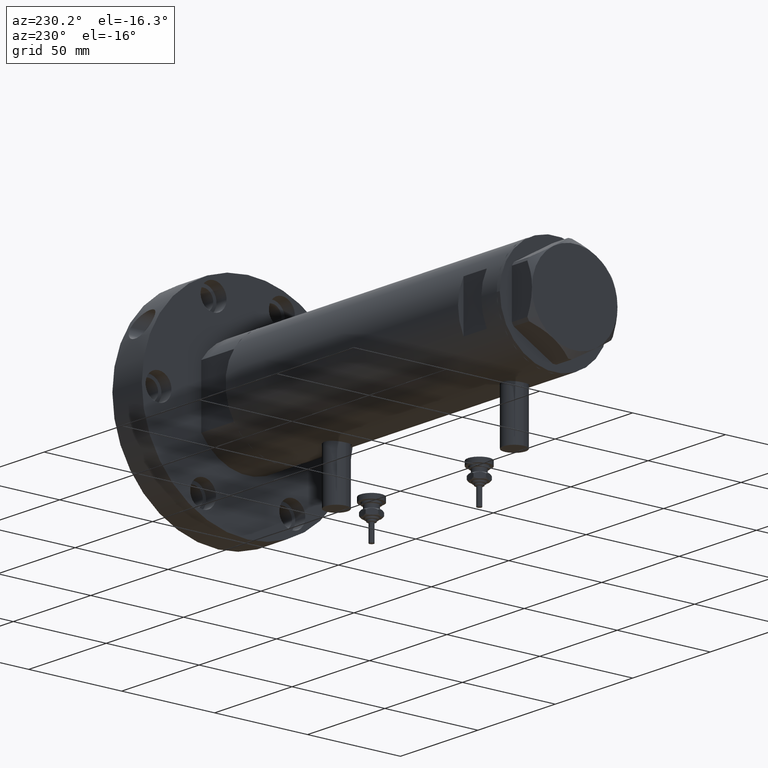
[diagram: clean part render]
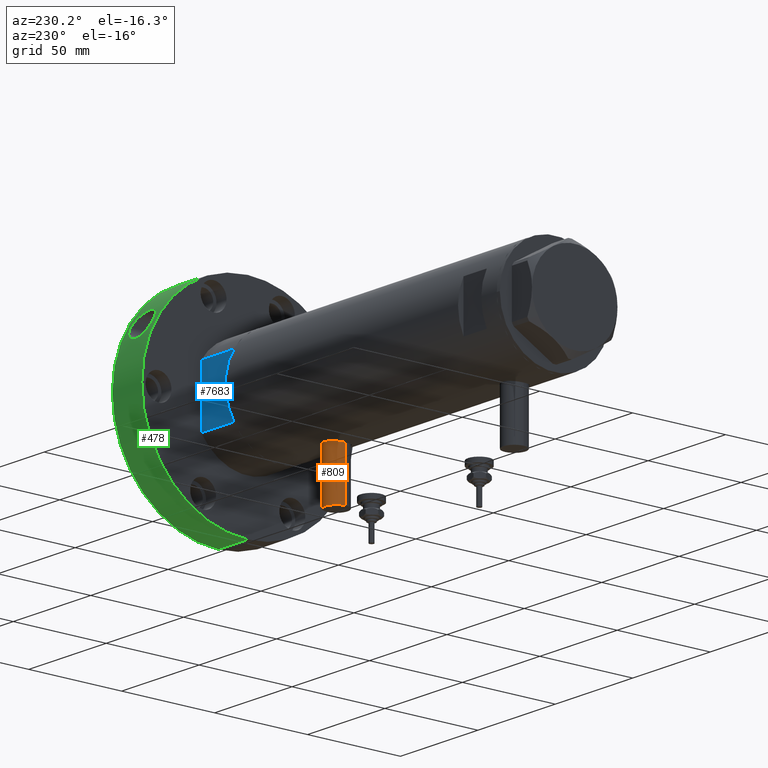
[diagram: same view with three faces highlighted in distinct colors, each labeled with its STEP entity id]
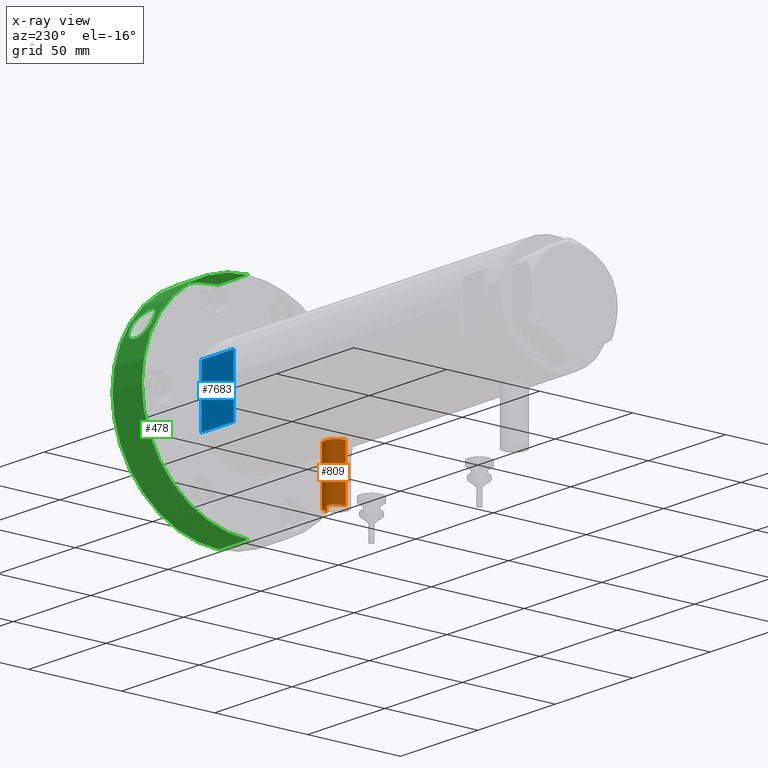
[diagram: x-ray of the same camera — body ghosted, the three highlighted faces saturated]
A machine part, auxiliary view with three faces highlighted in distinct colors.
The next image is the same camera in x-ray (body ghosted, the three faces saturated) — at least one of them is partly hidden behind the body in this view.
Their STEP definitions:

[orange] entity #809 — the highlighted cylindrical surface (edge-blend (fillet) strip) has radius 6 mm, axis along (0, 0, 1).
#271 = AXIS2_PLACEMENT_3D ( 'NONE', #1444, #7312, #1576 ) ;
#310 = EDGE_CURVE ( 'NONE', #2067, #7226, #2050, .T. ) ;
#483 = ORIENTED_EDGE ( 'NONE', *, *, #2708, .F. ) ;
#569 = CARTESIAN_POINT ( 'NONE',  ( -56.60000000000000142, 7.347880794884119736E-16, -45.29999999999999005 ) ) ;
#729 = CARTESIAN_POINT ( 'NONE',  ( -56.60000000000000142, 0.000000000000000000, -57.30000000000000426 ) ) ;
#753 = EDGE_CURVE ( 'NONE', #4342, #4074, #5552, .T. ) ;
#781 = ORIENTED_EDGE ( 'NONE', *, *, #310, .F. ) ;
#809 = ADVANCED_FACE ( 'NONE', ( #6083 ), #1042, .T. ) ;
#1042 = CYLINDRICAL_SURFACE ( 'NONE', #8267, 6.000000000000005329 ) ;
#1444 = CARTESIAN_POINT ( 'NONE',  ( -56.60000000000000142, 0.000000000000000000, -51.29999999999999716 ) ) ;
#1576 = DIRECTION ( 'NONE',  ( 0.000000000000000000, 0.000000000000000000, 1.000000000000000000 ) ) ;
#1696 = CARTESIAN_POINT ( 'NONE',  ( -28.30000000000000071, 0.000000000000000000, -51.29999999999999716 ) ) ;
#1856 = AXIS2_PLACEMENT_3D ( 'NONE', #1696, #6051, #3513 ) ;
#1969 = CARTESIAN_POINT ( 'NONE',  ( -28.30000000000000071, 0.000000000000000000, -57.30000000000000426 ) ) ;
#2050 = CIRCLE ( 'NONE', #271, 6.000000000000005329 ) ;
#2067 = VERTEX_POINT ( 'NONE', #569 ) ;
#2708 = EDGE_CURVE ( 'NONE', #7226, #4074, #3975, .T. ) ;
#3513 = DIRECTION ( 'NONE',  ( 0.000000000000000000, 0.000000000000000000, 1.000000000000000000 ) ) ;
#3552 = CARTESIAN_POINT ( 'NONE',  ( -28.30000000000000071, 7.347880794884119736E-16, -45.29999999999999005 ) ) ;
#3774 = CARTESIAN_POINT ( 'NONE',  ( -56.60000000000000142, 7.347880794884122694E-16, -45.29999999999999005 ) ) ;
#3955 = CARTESIAN_POINT ( 'NONE',  ( -56.60000000000000142, 0.000000000000000000, -57.30000000000000426 ) ) ;
#3975 = LINE ( 'NONE', #729, #6529 ) ;
#4074 = VERTEX_POINT ( 'NONE', #1969 ) ;
#4211 = EDGE_CURVE ( 'NONE', #2067, #4342, #6971, .T. ) ;
#4342 = VERTEX_POINT ( 'NONE', #3552 ) ;
#5409 = EDGE_LOOP ( 'NONE', ( #781, #8001, #6287, #483 ) ) ;
#5512 = CARTESIAN_POINT ( 'NONE',  ( -56.60000000000000142, 0.000000000000000000, -51.29999999999999716 ) ) ;
#5545 = DIRECTION ( 'NONE',  ( 0.000000000000000000, 0.000000000000000000, -1.000000000000000000 ) ) ;
#5552 = CIRCLE ( 'NONE', #1856, 6.000000000000005329 ) ;
#6051 = DIRECTION ( 'NONE',  ( -1.000000000000000000, 0.000000000000000000, 0.000000000000000000 ) ) ;
#6083 = FACE_OUTER_BOUND ( 'NONE', #5409, .T. ) ;
#6287 = ORIENTED_EDGE ( 'NONE', *, *, #753, .T. ) ;
#6529 = VECTOR ( 'NONE', #7822, 1000.000000000000000 ) ;
#6828 = VECTOR ( 'NONE', #7104, 1000.000000000000000 ) ;
#6971 = LINE ( 'NONE', #3774, #6828 ) ;
#7104 = DIRECTION ( 'NONE',  ( 1.000000000000000000, -0.000000000000000000, -0.000000000000000000 ) ) ;
#7226 = VERTEX_POINT ( 'NONE', #3955 ) ;
#7312 = DIRECTION ( 'NONE',  ( -1.000000000000000000, 0.000000000000000000, 0.000000000000000000 ) ) ;
#7514 = DIRECTION ( 'NONE',  ( 1.000000000000000000, -0.000000000000000000, -0.000000000000000000 ) ) ;
#7822 = DIRECTION ( 'NONE',  ( 1.000000000000000000, -0.000000000000000000, -0.000000000000000000 ) ) ;
#8001 = ORIENTED_EDGE ( 'NONE', *, *, #4211, .T. ) ;
#8267 = AXIS2_PLACEMENT_3D ( 'NONE', #5512, #7514, #5545 ) ;

[blue] entity #7683 — the highlighted planar face has unit normal (0, -1, -0).
#13 = VECTOR ( 'NONE', #1864, 1000.000000000000000 ) ;
#39 = CARTESIAN_POINT ( 'NONE',  ( -15.66045976336583401, 25.00000000000000000, 0.000000000000000000 ) ) ;
#52 = DIRECTION ( 'NONE',  ( 0.000000000000000000, -0.000000000000000000, -1.000000000000000000 ) ) ;
#109 = LINE ( 'NONE', #5257, #7383 ) ;
#187 = DIRECTION ( 'NONE',  ( -0.000000000000000000, -0.000000000000000000, 1.000000000000000000 ) ) ;
#237 = CARTESIAN_POINT ( 'NONE',  ( 7.141428428542853091, 25.00000000000000000, 0.000000000000000000 ) ) ;
#264 = VERTEX_POINT ( 'NONE', #1495 ) ;
#564 = DIRECTION ( 'NONE',  ( 1.000000000000000000, 0.000000000000000000, 0.000000000000000000 ) ) ;
#587 = CARTESIAN_POINT ( 'NONE',  ( -15.66045976336583045, 24.99999999999999645, 21.00000000000000355 ) ) ;
#683 = FACE_OUTER_BOUND ( 'NONE', #5590, .T. ) ;
#738 = CARTESIAN_POINT ( 'NONE',  ( -15.66045976336583401, 25.00000000000000000, 0.000000000000000000 ) ) ;
#840 = LINE ( 'NONE', #3390, #967 ) ;
#967 = VECTOR ( 'NONE', #187, 1000.000000000000000 ) ;
#1230 = ORIENTED_EDGE ( 'NONE', *, *, #2619, .F. ) ;
#1495 = CARTESIAN_POINT ( 'NONE',  ( 15.66045976336582690, 25.00000000000000000, 0.000000000000000000 ) ) ;
#1708 = CARTESIAN_POINT ( 'NONE',  ( -7.141428428542853091, 25.00000000000000000, 0.000000000000000000 ) ) ;
#1864 = DIRECTION ( 'NONE',  ( 1.000000000000000000, 0.000000000000000000, 0.000000000000000000 ) ) ;
#1898 = EDGE_CURVE ( 'NONE', #6115, #8042, #109, .T. ) ;
#1979 = DIRECTION ( 'NONE',  ( 0.000000000000000000, -1.000000000000000000, 0.000000000000000000 ) ) ;
#2028 = VECTOR ( 'NONE', #564, 1000.000000000000000 ) ;
#2356 = CARTESIAN_POINT ( 'NONE',  ( 15.66045976336583045, 24.99999999999999645, 20.99999999999999645 ) ) ;
#2396 = ORIENTED_EDGE ( 'NONE', *, *, #1898, .T. ) ;
#2480 = VECTOR ( 'NONE', #5814, 1000.000000000000000 ) ;
#2619 = EDGE_CURVE ( 'NONE', #5958, #264, #4890, .T. ) ;
#2733 = VERTEX_POINT ( 'NONE', #3282 ) ;
#3215 = ORIENTED_EDGE ( 'NONE', *, *, #5128, .F. ) ;
#3234 = PLANE ( 'NONE',  #5965 ) ;
#3281 = CARTESIAN_POINT ( 'NONE',  ( 15.66045976336583401, 25.00000000000000000, 0.000000000000000000 ) ) ;
#3282 = CARTESIAN_POINT ( 'NONE',  ( -15.66045976336583401, 25.00000000000000000, 0.000000000000000000 ) ) ;
#3366 = DIRECTION ( 'NONE',  ( -0.000000000000000000, -0.000000000000000000, 1.000000000000000000 ) ) ;
#3390 = CARTESIAN_POINT ( 'NONE',  ( -15.66045976336583401, 25.00000000000000000, 0.000000000000000000 ) ) ;
#3840 = LINE ( 'NONE', #8224, #13 ) ;
#4159 = VECTOR ( 'NONE', #3366, 1000.000000000000000 ) ;
#4466 = EDGE_CURVE ( 'NONE', #7472, #5958, #3840, .T. ) ;
#4890 = LINE ( 'NONE', #6292, #2028 ) ;
#5128 = EDGE_CURVE ( 'NONE', #264, #8042, #5807, .T. ) ;
#5218 = DIRECTION ( 'NONE',  ( 1.000000000000000000, 0.000000000000000000, 0.000000000000000000 ) ) ;
#5257 = CARTESIAN_POINT ( 'NONE',  ( -15.66045976336583401, 25.00000000000000000, 21.00000000000000000 ) ) ;
#5266 = EDGE_CURVE ( 'NONE', #2733, #6115, #840, .T. ) ;
#5590 = EDGE_LOOP ( 'NONE', ( #2396, #3215, #1230, #6121, #6130, #6998 ) ) ;
#5807 = LINE ( 'NONE', #3281, #4159 ) ;
#5814 = DIRECTION ( 'NONE',  ( 1.000000000000000000, 0.000000000000000000, 0.000000000000000000 ) ) ;
#5958 = VERTEX_POINT ( 'NONE', #237 ) ;
#5965 = AXIS2_PLACEMENT_3D ( 'NONE', #39, #1979, #52 ) ;
#6115 = VERTEX_POINT ( 'NONE', #587 ) ;
#6121 = ORIENTED_EDGE ( 'NONE', *, *, #4466, .F. ) ;
#6130 = ORIENTED_EDGE ( 'NONE', *, *, #6363, .F. ) ;
#6292 = CARTESIAN_POINT ( 'NONE',  ( -15.66045976336583401, 25.00000000000000000, 0.000000000000000000 ) ) ;
#6363 = EDGE_CURVE ( 'NONE', #2733, #7472, #6449, .T. ) ;
#6449 = LINE ( 'NONE', #738, #2480 ) ;
#6998 = ORIENTED_EDGE ( 'NONE', *, *, #5266, .T. ) ;
#7383 = VECTOR ( 'NONE', #5218, 1000.000000000000000 ) ;
#7472 = VERTEX_POINT ( 'NONE', #1708 ) ;
#7683 = ADVANCED_FACE ( 'NONE', ( #683 ), #3234, .F. ) ;
#8042 = VERTEX_POINT ( 'NONE', #2356 ) ;
#8224 = CARTESIAN_POINT ( 'NONE',  ( -15.66045976336583401, 25.00000000000000000, 0.000000000000000000 ) ) ;

[green] entity #478 — the highlighted cylindrical surface (partial cylindrical patch) has radius 57 mm, axis along (-1, -0, 0).
#22 = VECTOR ( 'NONE', #3857, 1000.000000000000000 ) ;
#31 = ORIENTED_EDGE ( 'NONE', *, *, #5992, .T. ) ;
#167 = CARTESIAN_POINT ( 'NONE',  ( 27.97890842132419209, -49.66297870214520316, 16.46188593116974630 ) ) ;
#179 = CARTESIAN_POINT ( 'NONE',  ( 57.00000000000000000, 6.980486755139912911E-15, 19.00000000000000000 ) ) ;
#239 = CARTESIAN_POINT ( 'NONE',  ( 25.89703629303161847, -50.77948709595150945, 15.87358466694204218 ) ) ;
#275 = CARTESIAN_POINT ( 'NONE',  ( 35.38890971445781020, -44.68435462733069130, 11.97877297669115570 ) ) ;
#478 = ADVANCED_FACE ( 'NONE', ( #3710, #4970 ), #4801, .T. ) ;
#490 = CARTESIAN_POINT ( 'NONE',  ( 33.41529349653664127, -46.17855944617061681, 4.210940565491391396 ) ) ;
#547 = LINE ( 'NONE', #7561, #8215 ) ;
#619 = ORIENTED_EDGE ( 'NONE', *, *, #1775, .T. ) ;
#623 = CARTESIAN_POINT ( 'NONE',  ( 29.26003768813860262, -48.91937361899778836, 2.499999999999999112 ) ) ;
#762 = CARTESIAN_POINT ( 'NONE',  ( 22.85873534068688429, -52.21656212836945343, 5.807502528299100852 ) ) ;
#808 = CARTESIAN_POINT ( 'NONE',  ( 27.98353468428519264, -49.65864306610337309, 2.547459964599188442 ) ) ;
#857 = CARTESIAN_POINT ( 'NONE',  ( 27.13971171201926325, -50.12650826127234893, 2.692325844519847244 ) ) ;
#891 = CARTESIAN_POINT ( 'NONE',  ( 21.88515949743512223, -52.63117428265919528, 10.45148438432320859 ) ) ;
#918 = CARTESIAN_POINT ( 'NONE',  ( 34.74284817318735463, -45.18906961371806830, 13.26641101183793126 ) ) ;
#928 = CARTESIAN_POINT ( 'NONE',  ( 24.20205133323140601, -51.60712088745781045, 14.76177537542764462 ) ) ;
#965 = CARTESIAN_POINT ( 'NONE',  ( 35.71080734604925766, -44.42682866383130147, 10.78085935617436952 ) ) ;
#1120 = DIRECTION ( 'NONE',  ( 1.000000000000000000, 0.000000000000000000, 0.000000000000000000 ) ) ;
#1167 = CARTESIAN_POINT ( 'NONE',  ( 35.30051604786073227, -44.75365703455266697, 6.831732694815459972 ) ) ;
#1362 = VERTEX_POINT ( 'NONE', #1844 ) ;
#1397 = CARTESIAN_POINT ( 'NONE',  ( 31.55167092744376589, -47.47157043548265420, 15.95048538508980762 ) ) ;
#1443 = CARTESIAN_POINT ( 'NONE',  ( 26.72662005529747375, -50.34775187020023424, 2.807689688092052105 ) ) ;
#1494 = CARTESIAN_POINT ( 'NONE',  ( 27.13830391679345055, -50.12553121886133312, 16.29736605308010766 ) ) ;
#1517 = EDGE_LOOP ( 'NONE', ( #619, #5330 ) ) ;
#1550 = CARTESIAN_POINT ( 'NONE',  ( 29.69019886169500566, -48.65945451178145476, 2.540304476284386048 ) ) ;
#1573 = B_SPLINE_CURVE_WITH_KNOTS ( 'NONE', 3,
 ( #8274, #5108, #5934, #808, #4595, #857, #1443, #7970, #2785, #4141, #4719, #2834, #6017, #3434, #7311, #4683, #4090, #762, #3971, #4054, #5230, #2871, #6517, #6604, #6643, #891, #6563, #2245, #5847, #7890, #2712, #2093, #3312, #7279, #5394, #3404, #928, #4755, #5304, #5970, #7178, #239, #5354, #3362, #1494, #5893, #167, #7934, #2753 ),
 .UNSPECIFIED., .F., .F.,
 ( 4, 2, 2, 2, 2, 2, 2, 2, 2, 2, 2, 2, 2, 1, 2, 2, 2, 2, 2, 2, 2, 2, 2, 2, 4 ),
 ( 0.02408476556850999359, 0.02480584272552282393, 0.02552691988253565081, 0.02696907419656131843, 0.02769015135357414878, 0.02841122851058698259, 0.02985338282461264675, 0.03057445998162548056, 0.03129553713863830744, 0.03273769145266397507, 0.03417984576668963576, 0.03562200008071529644, 0.03634307723772813026, 0.03706415439474096407, 0.03778523155175379095, 0.03850630870876661782, 0.03994846302279228545, 0.04066954017980511926, 0.04139061733681795308, 0.04211169449383077301, 0.04283277165084360683, 0.04427492596486926058, 0.04499600312188208745, 0.04571708027889491432, 0.04715923459292056114 ),
 .UNSPECIFIED. ) ;
#1660 = AXIS2_PLACEMENT_3D ( 'NONE', #5503, #6038, #1120 ) ;
#1692 = CARTESIAN_POINT ( 'NONE',  ( 33.74329508407183909, -45.93943000138825283, 4.514525018396740030 ) ) ;
#1734 = CARTESIAN_POINT ( 'NONE',  ( 30.53995107737558001, -48.13067431506262750, 2.699709609212773032 ) ) ;
#1775 = EDGE_CURVE ( 'NONE', #1932, #3639, #5093, .T. ) ;
#1822 = DIRECTION ( 'NONE',  ( -0.000000000000000000, -0.000000000000000000, -1.000000000000000000 ) ) ;
#1844 = CARTESIAN_POINT ( 'NONE',  ( -57.00000000000000000, 0.000000000000000000, 19.00000000000000000 ) ) ;
#1854 = CARTESIAN_POINT ( 'NONE',  ( 34.99971379235670810, -44.98983262137862482, 6.168003383100604253 ) ) ;
#1932 = VERTEX_POINT ( 'NONE', #5138 ) ;
#2027 = VERTEX_POINT ( 'NONE', #4733 ) ;
#2093 = CARTESIAN_POINT ( 'NONE',  ( 22.83988462326767888, -52.22480113453154615, 13.16198180661147354 ) ) ;
#2118 = CARTESIAN_POINT ( 'NONE',  ( 29.69548693253856442, -48.65617925628362883, 16.45878428174938790 ) ) ;
#2132 = CARTESIAN_POINT ( 'NONE',  ( 28.82445616129993127, -49.17469600318133871, 2.500000000000000000 ) ) ;
#2158 = CARTESIAN_POINT ( 'NONE',  ( 35.71780161718379532, -44.42120325873273856, 8.257231265096653061 ) ) ;
#2245 = CARTESIAN_POINT ( 'NONE',  ( 22.08241703413474966, -52.54877065612812004, 11.39840868912841110 ) ) ;
#2319 = CARTESIAN_POINT ( 'NONE',  ( 34.19681765691756681, -45.60367500408424490, 14.01120248679573344 ) ) ;
#2401 = ORIENTED_EDGE ( 'NONE', *, *, #6561, .T. ) ;
#2469 = AXIS2_PLACEMENT_3D ( 'NONE', #5182, #7773, #6473 ) ;
#2528 = CARTESIAN_POINT ( 'NONE',  ( 35.61139944816271452, -44.50654873905122599, 7.767924215423540169 ) ) ;
#2712 = CARTESIAN_POINT ( 'NONE',  ( 22.60549821113150415, -52.32623962976818177, 12.74884988705218447 ) ) ;
#2742 = ORIENTED_EDGE ( 'NONE', *, *, #5201, .F. ) ;
#2753 = CARTESIAN_POINT ( 'NONE',  ( 28.82445616129993127, -49.17469600318133871, 16.50000000000000000 ) ) ;
#2776 = CARTESIAN_POINT ( 'NONE',  ( 35.75868125000121012, -44.38826306542677003, 8.509547604823088918 ) ) ;
#2785 = CARTESIAN_POINT ( 'NONE',  ( 25.91897460376192086, -50.76668221364457168, 3.127636840323338774 ) ) ;
#2834 = CARTESIAN_POINT ( 'NONE',  ( 24.75029584890902257, -51.34788951407900726, 3.789897724629545550 ) ) ;
#2871 = CARTESIAN_POINT ( 'NONE',  ( 21.87863796026251961, -52.63399395610100839, 8.504987851984909142 ) ) ;
#2915 = AXIS2_PLACEMENT_3D ( 'NONE', #7399, #4182, #6739 ) ;
#3015 = CARTESIAN_POINT ( 'NONE',  ( 35.39057712594161842, -44.68240000125437206, 7.061413026461376141 ) ) ;
#3137 = CARTESIAN_POINT ( 'NONE',  ( 32.89274836914412248, -46.55227068422379233, 3.799289476890531425 ) ) ;
#3178 = CARTESIAN_POINT ( 'NONE',  ( 33.23247934504853873, -46.31162628805797254, 14.95595195716102310 ) ) ;
#3270 = CARTESIAN_POINT ( 'NONE',  ( 30.94859645401658810, -47.86873853806041268, 16.18385190983295985 ) ) ;
#3312 = CARTESIAN_POINT ( 'NONE',  ( 23.25164259164114355, -52.04213353213880566, 13.74264666561707315 ) ) ;
#3362 = CARTESIAN_POINT ( 'NONE',  ( 26.71960701942106198, -50.34996544369214178, 16.17958866556555719 ) ) ;
#3404 = CARTESIAN_POINT ( 'NONE',  ( 23.86660033461915376, -51.76311045036425185, 14.44697605592097212 ) ) ;
#3434 = CARTESIAN_POINT ( 'NONE',  ( 23.88911913582416346, -51.75271953319344220, 4.530636853782453066 ) ) ;
#3501 = CIRCLE ( 'NONE', #1660, 57.00000000000000000 ) ;
#3639 = VERTEX_POINT ( 'NONE', #2132 ) ;
#3660 = CARTESIAN_POINT ( 'NONE',  ( 34.20412977693993639, -45.59729364466625157, 5.015470143275064352 ) ) ;
#3710 = FACE_OUTER_BOUND ( 'NONE', #4212, .T. ) ;
#3744 = ORIENTED_EDGE ( 'NONE', *, *, #5339, .F. ) ;
#3857 = DIRECTION ( 'NONE',  ( -0.000000000000000000, -0.000000000000000000, -1.000000000000000000 ) ) ;
#3884 = CARTESIAN_POINT ( 'NONE',  ( 28.82445616129993127, -49.17469600318133871, 16.50000000000000000 ) ) ;
#3923 = CARTESIAN_POINT ( 'NONE',  ( 32.88375925337243899, -46.56028503485372738, 15.21931477795532572 ) ) ;
#3971 = CARTESIAN_POINT ( 'NONE',  ( 22.62317735280666753, -52.31860479036789258, 6.217930636314440207 ) ) ;
#3974 = LINE ( 'NONE', #6521, #22 ) ;
#4054 = CARTESIAN_POINT ( 'NONE',  ( 22.23504799713433755, -52.48473303078126406, 7.090116555777266072 ) ) ;
#4090 = CARTESIAN_POINT ( 'NONE',  ( 23.27260478202569871, -52.03276517858718364, 5.229983971405473220 ) ) ;
#4141 = CARTESIAN_POINT ( 'NONE',  ( 25.52281504638207466, -50.96700088880847090, 3.323593174969620812 ) ) ;
#4182 = DIRECTION ( 'NONE',  ( -0.000000000000000000, -0.000000000000000000, -1.000000000000000000 ) ) ;
#4212 = EDGE_LOOP ( 'NONE', ( #2742, #3744, #2401, #31 ) ) ;
#4247 = CARTESIAN_POINT ( 'NONE',  ( 32.71005208120452323, -46.68087112852129650, 3.673329141902087702 ) ) ;
#4249 = EDGE_CURVE ( 'NONE', #3639, #1932, #1573, .T. ) ;
#4586 = CARTESIAN_POINT ( 'NONE',  ( 32.33035999521827364, -46.94462976603113447, 15.56265322181456945 ) ) ;
#4595 = CARTESIAN_POINT ( 'NONE',  ( 27.77047724555110619, -49.77809045276907085, 2.576501876810959324 ) ) ;
#4607 = CARTESIAN_POINT ( 'NONE',  ( 28.82445616129993127, -49.17469600318133871, 2.500000000000000000 ) ) ;
#4683 = CARTESIAN_POINT ( 'NONE',  ( 23.42056746478218088, -51.96638907620206282, 5.044427461734966478 ) ) ;
#4719 = CARTESIAN_POINT ( 'NONE',  ( 25.32606777048345492, -51.06501754454339448, 3.432686654822916239 ) ) ;
#4733 = CARTESIAN_POINT ( 'NONE',  ( -57.00000000000000000, 0.000000000000000000, 0.000000000000000000 ) ) ;
#4755 = CARTESIAN_POINT ( 'NONE',  ( 24.37667505289585179, -51.52492692485947856, 14.91013541732417202 ) ) ;
#4801 = CYLINDRICAL_SURFACE ( 'NONE', #2915, 57.00000000000000000 ) ;
#4872 = CARTESIAN_POINT ( 'NONE',  ( 34.34985162745142162, -45.48755048059273776, 5.196024451594974281 ) ) ;
#4934 = CARTESIAN_POINT ( 'NONE',  ( 57.00000000000000000, 6.980486755139912911E-15, 0.000000000000000000 ) ) ;
#4970 = FACE_BOUND ( 'NONE', #1517, .T. ) ;
#5093 = B_SPLINE_CURVE_WITH_KNOTS ( 'NONE', 3,
 ( #3884, #7808, #2118, #7214, #3270, #1397, #5216, #6353, #4586, #3923, #3178, #5711, #2319, #918, #6003, #275, #6683, #965, #5924, #6047, #5960, #7385, #2776, #2158, #2528, #6212, #3015, #1167, #1854, #8216, #4872, #3660, #6307, #1692, #490, #6944, #3137, #4247, #5540, #5669, #7466, #1734, #1550, #623, #4607 ),
 .UNSPECIFIED., .F., .F.,
 ( 4, 2, 2, 2, 2, 2, 2, 2, 2, 2, 1, 2, 2, 2, 2, 2, 2, 2, 2, 2, 2, 2, 4 ),
 ( 0.000000000000000000, 0.001505297848031869178, 0.003010595696063738357, 0.003763244620079677066, 0.004515893544095615775, 0.006021191392127498397, 0.007526489240159381020, 0.009031787088191262775, 0.01053708493622314626, 0.01128973386023908974, 0.01204238278425503496, 0.01279503170827097670, 0.01354768063228692018, 0.01430032955630286193, 0.01505297848031880541, 0.01655827632835068369, 0.01731092525236661503, 0.01806357417638254984, 0.01881622310039848464, 0.01956887202441441945, 0.02107416987244627865, 0.02257946772047813785, 0.02408476556850999359 ),
 .UNSPECIFIED. ) ;
#5108 = CARTESIAN_POINT ( 'NONE',  ( 28.61580118352872404, -49.29700212296323514, 2.499999999999999556 ) ) ;
#5138 = CARTESIAN_POINT ( 'NONE',  ( 28.82445616129993127, -49.17469600318133871, 16.50000000000000000 ) ) ;
#5182 = CARTESIAN_POINT ( 'NONE',  ( 0.000000000000000000, 0.000000000000000000, 0.000000000000000000 ) ) ;
#5201 = EDGE_CURVE ( 'NONE', #5637, #6438, #3974, .T. ) ;
#5216 = CARTESIAN_POINT ( 'NONE',  ( 31.75126552669414792, -47.33827674157504362, 15.86247891706246982 ) ) ;
#5230 = CARTESIAN_POINT ( 'NONE',  ( 22.08178021749764497, -52.54909229656823300, 7.558155316862258388 ) ) ;
#5304 = CARTESIAN_POINT ( 'NONE',  ( 24.73936207829587275, -51.35177061412355926, 15.18896549076075786 ) ) ;
#5330 = ORIENTED_EDGE ( 'NONE', *, *, #4249, .T. ) ;
#5339 = EDGE_CURVE ( 'NONE', #1362, #5637, #3501, .T. ) ;
#5354 = CARTESIAN_POINT ( 'NONE',  ( 26.51088924231333976, -50.46014220356917690, 16.11025720069375211 ) ) ;
#5394 = CARTESIAN_POINT ( 'NONE',  ( 23.70577091693370875, -51.83690635343715769, 14.28053910728756470 ) ) ;
#5503 = CARTESIAN_POINT ( 'NONE',  ( 0.000000000000000000, 0.000000000000000000, 19.00000000000000000 ) ) ;
#5540 = CARTESIAN_POINT ( 'NONE',  ( 32.15238511280818301, -47.06834474940211521, 3.326128875716660271 ) ) ;
#5637 = VERTEX_POINT ( 'NONE', #179 ) ;
#5669 = CARTESIAN_POINT ( 'NONE',  ( 31.76536654374106305, -47.33068270814480627, 3.133106274072375186 ) ) ;
#5711 = CARTESIAN_POINT ( 'NONE',  ( 33.88797300384531042, -45.83415427990870938, 14.35374879166339213 ) ) ;
#5847 = CARTESIAN_POINT ( 'NONE',  ( 22.23028947639360808, -52.48638556173913372, 11.86135826905956669 ) ) ;
#5893 = CARTESIAN_POINT ( 'NONE',  ( 27.34814692522247981, -50.01136423115338658, 16.34589020612161292 ) ) ;
#5924 = CARTESIAN_POINT ( 'NONE',  ( 35.75305297056564768, -44.39279799331822574, 10.52909610675759566 ) ) ;
#5934 = CARTESIAN_POINT ( 'NONE',  ( 28.40589938319820007, -49.41825497551352697, 2.509308181741890298 ) ) ;
#5960 = CARTESIAN_POINT ( 'NONE',  ( 35.83804446753953243, -44.32419135610290084, 9.519495110145717476 ) ) ;
#5970 = CARTESIAN_POINT ( 'NONE',  ( 24.92761208003575391, -51.26070057821633696, 15.31938895555614444 ) ) ;
#5992 = EDGE_CURVE ( 'NONE', #2027, #6438, #6030, .T. ) ;
#6003 = CARTESIAN_POINT ( 'NONE',  ( 34.98321642824078737, -45.00267822667846929, 12.86244522570881088 ) ) ;
#6017 = CARTESIAN_POINT ( 'NONE',  ( 24.39055516853360217, -51.51928558548389248, 4.064100026452432068 ) ) ;
#6030 = CIRCLE ( 'NONE', #2469, 57.00000000000000000 ) ;
#6038 = DIRECTION ( 'NONE',  ( 0.000000000000000000, 0.000000000000000000, 1.000000000000000000 ) ) ;
#6047 = CARTESIAN_POINT ( 'NONE',  ( 35.80940970890237907, -44.34735039088128872, 10.02432478498219304 ) ) ;
#6212 = CARTESIAN_POINT ( 'NONE',  ( 35.54571916929174336, -44.55908064488274789, 7.528890026604237562 ) ) ;
#6307 = CARTESIAN_POINT ( 'NONE',  ( 33.90116693679295423, -45.82299162908688572, 4.675178350585022180 ) ) ;
#6353 = CARTESIAN_POINT ( 'NONE',  ( 32.14080218287747215, -47.07466561166122432, 15.66840336688437851 ) ) ;
#6438 = VERTEX_POINT ( 'NONE', #4934 ) ;
#6473 = DIRECTION ( 'NONE',  ( 1.000000000000000000, 0.000000000000000000, 0.000000000000000000 ) ) ;
#6517 = CARTESIAN_POINT ( 'NONE',  ( 21.82614557076517769, -52.65566800177244033, 8.986519956493525640 ) ) ;
#6521 = CARTESIAN_POINT ( 'NONE',  ( 57.00000000000000000, 6.980486755139912911E-15, 19.00000000000000000 ) ) ;
#6561 = EDGE_CURVE ( 'NONE', #1362, #2027, #547, .T. ) ;
#6563 = CARTESIAN_POINT ( 'NONE',  ( 21.95934393241937599, -52.60033640697714930, 10.93015346300710178 ) ) ;
#6604 = CARTESIAN_POINT ( 'NONE',  ( 21.82367098814484763, -52.65669364286446097, 9.721382425904835145 ) ) ;
#6643 = CARTESIAN_POINT ( 'NONE',  ( 21.83585284418030525, -52.65164995674042814, 9.967530104571656224 ) ) ;
#6683 = CARTESIAN_POINT ( 'NONE',  ( 35.54753094409378633, -44.55774354146507932, 11.51246087786898009 ) ) ;
#6739 = DIRECTION ( 'NONE',  ( -1.000000000000000000, 0.000000000000000000, 0.000000000000000000 ) ) ;
#6944 = CARTESIAN_POINT ( 'NONE',  ( 33.24516120556924648, -46.30125330429826391, 4.068014279449115200 ) ) ;
#7178 = CARTESIAN_POINT ( 'NONE',  ( 25.50058020563914951, -50.97942212603952328, 15.67693897252596713 ) ) ;
#7214 = CARTESIAN_POINT ( 'NONE',  ( 30.53721702047090503, -48.13236022287743765, 16.30072227955669817 ) ) ;
#7279 = CARTESIAN_POINT ( 'NONE',  ( 23.39865334956370901, -51.97625858493571371, 13.92890016091508265 ) ) ;
#7311 = CARTESIAN_POINT ( 'NONE',  ( 23.72837445106946674, -51.82656480899985496, 4.695409394053601027 ) ) ;
#7385 = CARTESIAN_POINT ( 'NONE',  ( 35.81221777270944528, -44.34508136089900177, 9.014550527863743667 ) ) ;
#7399 = CARTESIAN_POINT ( 'NONE',  ( 0.000000000000000000, 0.000000000000000000, 19.00000000000000000 ) ) ;
#7466 = CARTESIAN_POINT ( 'NONE',  ( 30.96091106536544046, -47.86077750392103525, 2.820041164969578240 ) ) ;
#7561 = CARTESIAN_POINT ( 'NONE',  ( -57.00000000000000000, 0.000000000000000000, 19.00000000000000000 ) ) ;
#7773 = DIRECTION ( 'NONE',  ( 0.000000000000000000, 0.000000000000000000, 1.000000000000000000 ) ) ;
#7808 = CARTESIAN_POINT ( 'NONE',  ( 29.26514404840685657, -48.91638045239670163, 16.50000000000000355 ) ) ;
#7890 = CARTESIAN_POINT ( 'NONE',  ( 22.31651865659627632, -52.44982336329778860, 12.08927892057075582 ) ) ;
#7934 = CARTESIAN_POINT ( 'NONE',  ( 28.40225404471480530, -49.42217585338579511, 16.50000000000000355 ) ) ;
#7970 = CARTESIAN_POINT ( 'NONE',  ( 26.11933157405916717, -50.66391815301326318, 3.040179230262288090 ) ) ;
#8215 = VECTOR ( 'NONE', #1822, 1000.000000000000000 ) ;
#8216 = CARTESIAN_POINT ( 'NONE',  ( 34.76049447526646219, -45.17550493402999479, 5.760982555581668940 ) ) ;
#8274 = CARTESIAN_POINT ( 'NONE',  ( 28.82445616129993127, -49.17469600318133871, 2.500000000000000000 ) ) ;